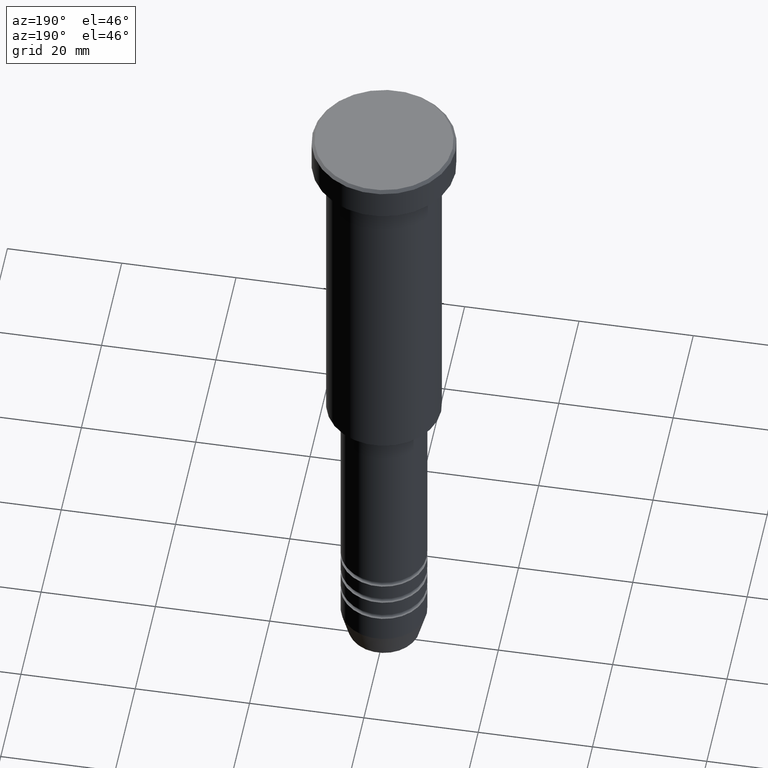
[diagram: clean part render]
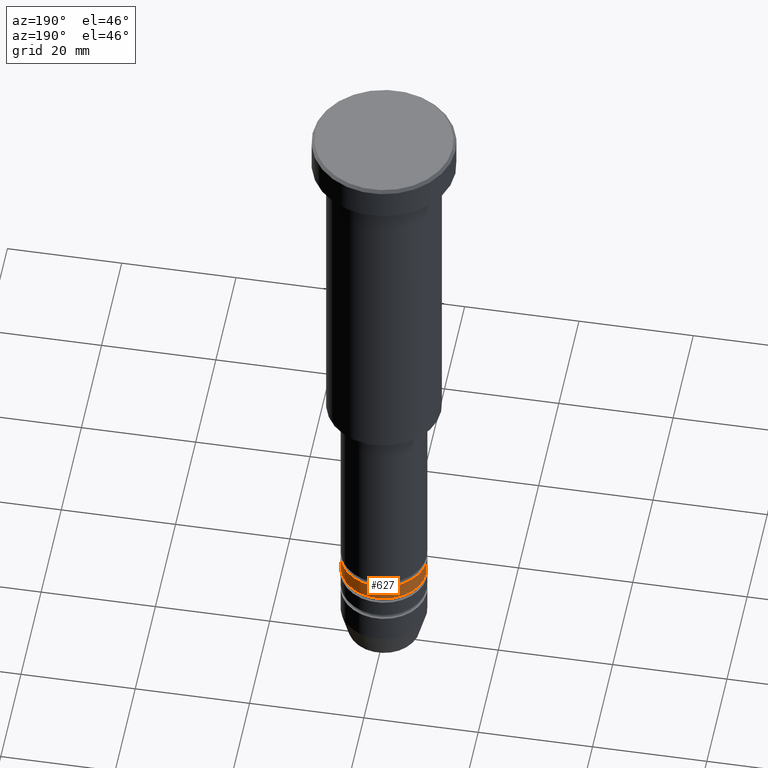
[diagram: same view with one face highlighted and labeled with its STEP entity id]
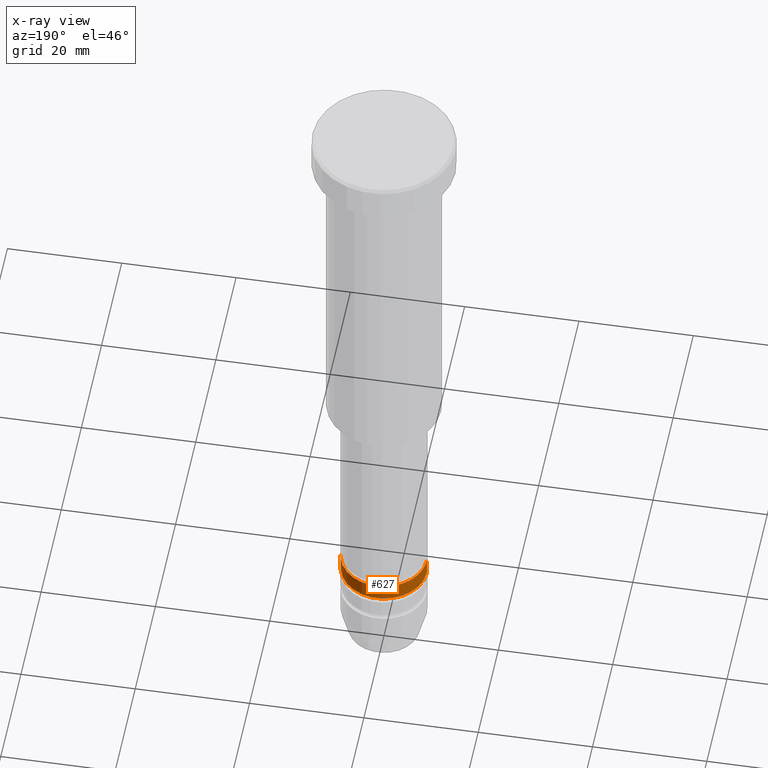
[diagram: x-ray of the same camera — body ghosted, the highlighted face saturated]
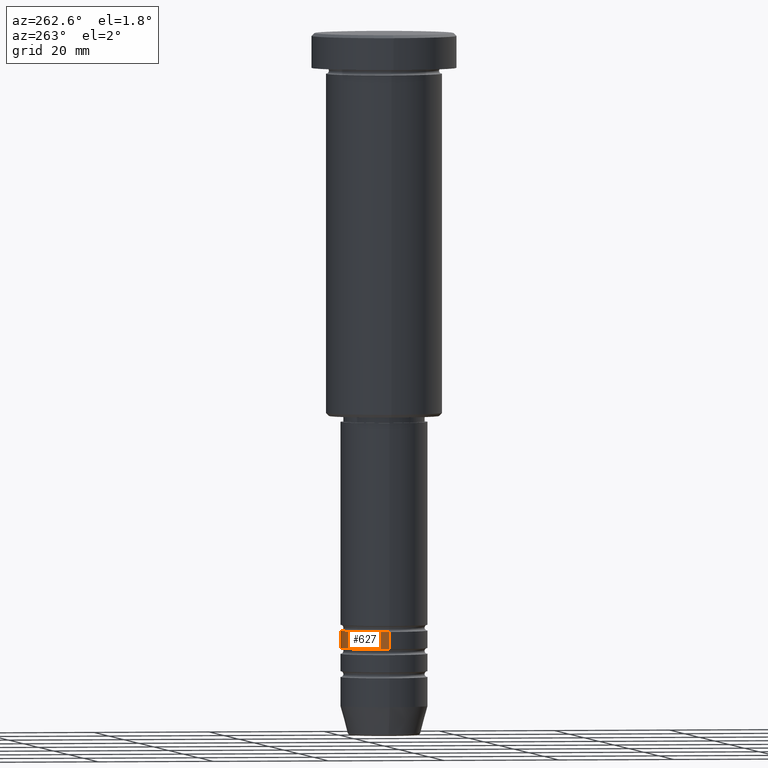
[diagram: same view with one face highlighted and labeled with its STEP entity id]
A machine part, auxiliary view. The second image highlights one B-rep face of the part: STEP entity #627.
The next image is the same camera in x-ray: the body ghosted, the highlighted face saturated — about 0% of this face is hidden behind the body in this view.
A second angle (auxiliary view) of the same face is appended — the face is thin or edge-on in the first view.
In plain terms, the highlighted cylindrical surface (partial cylindrical patch) has radius 7.5 mm, axis along (-0, -0, 1).
Its self-contained STEP definition (entity closure, byte-faithful):
#1 = EDGE_CURVE ( 'NONE', #90, #739, #900, .T. ) ;
#69 = CARTESIAN_POINT ( 'NONE',  ( 7.500000000000000000, 0.000000000000000000, -102.9999999999999005 ) ) ;
#80 = FACE_OUTER_BOUND ( 'NONE', #1144, .T. ) ;
#90 = VERTEX_POINT ( 'NONE', #990 ) ;
#143 = CIRCLE ( 'NONE', #750, 7.500000000000000000 ) ;
#171 = DIRECTION ( 'NONE',  ( 1.000000000000000000, 0.000000000000000000, 0.000000000000000000 ) ) ;
#185 = DIRECTION ( 'NONE',  ( 1.000000000000000000, 0.000000000000000000, 0.000000000000000000 ) ) ;
#193 = CARTESIAN_POINT ( 'NONE',  ( 7.500000000000002665, 0.000000000000000000, -105.9999999999999147 ) ) ;
#260 = EDGE_CURVE ( 'NONE', #716, #90, #1109, .T. ) ;
#263 = CARTESIAN_POINT ( 'NONE',  ( 0.000000000000000000, 0.000000000000000000, 0.000000000000000000 ) ) ;
#285 = CYLINDRICAL_SURFACE ( 'NONE', #786, 7.500000000000001776 ) ;
#346 = CARTESIAN_POINT ( 'NONE',  ( -7.500000000000001776, 9.184850993605149917E-16, 0.000000000000000000 ) ) ;
#364 = DIRECTION ( 'NONE',  ( 1.000000000000000000, 0.000000000000000000, 0.000000000000000000 ) ) ;
#365 = CARTESIAN_POINT ( 'NONE',  ( 0.000000000000000000, 0.000000000000000000, -105.9999999999999147 ) ) ;
#448 = DIRECTION ( 'NONE',  ( -0.000000000000000000, -0.000000000000000000, 1.000000000000000000 ) ) ;
#449 = VECTOR ( 'NONE', #448, 1000.000000000000000 ) ;
#558 = DIRECTION ( 'NONE',  ( -0.000000000000000000, -0.000000000000000000, 1.000000000000000000 ) ) ;
#561 = LINE ( 'NONE', #844, #1014 ) ;
#610 = EDGE_CURVE ( 'NONE', #716, #1174, #561, .T. ) ;
#613 = ORIENTED_EDGE ( 'NONE', *, *, #260, .T. ) ;
#627 = ADVANCED_FACE ( 'NONE', ( #80 ), #285, .T. ) ;
#630 = ORIENTED_EDGE ( 'NONE', *, *, #610, .F. ) ;
#680 = EDGE_CURVE ( 'NONE', #1174, #739, #143, .T. ) ;
#716 = VERTEX_POINT ( 'NONE', #193 ) ;
#739 = VERTEX_POINT ( 'NONE', #1130 ) ;
#750 = AXIS2_PLACEMENT_3D ( 'NONE', #930, #925, #171 ) ;
#786 = AXIS2_PLACEMENT_3D ( 'NONE', #263, #1117, #364 ) ;
#844 = CARTESIAN_POINT ( 'NONE',  ( 7.500000000000001776, 0.000000000000000000, 0.000000000000000000 ) ) ;
#900 = LINE ( 'NONE', #346, #449 ) ;
#918 = AXIS2_PLACEMENT_3D ( 'NONE', #365, #558, #185 ) ;
#925 = DIRECTION ( 'NONE',  ( -0.000000000000000000, -0.000000000000000000, 1.000000000000000000 ) ) ;
#928 = ORIENTED_EDGE ( 'NONE', *, *, #680, .F. ) ;
#930 = CARTESIAN_POINT ( 'NONE',  ( 0.000000000000000000, 0.000000000000000000, -102.9999999999999005 ) ) ;
#990 = CARTESIAN_POINT ( 'NONE',  ( -7.500000000000003553, 9.184850993605151889E-16, -105.9999999999999147 ) ) ;
#999 = ORIENTED_EDGE ( 'NONE', *, *, #1, .T. ) ;
#1005 = DIRECTION ( 'NONE',  ( -0.000000000000000000, -0.000000000000000000, 1.000000000000000000 ) ) ;
#1014 = VECTOR ( 'NONE', #1005, 1000.000000000000000 ) ;
#1109 = CIRCLE ( 'NONE', #918, 7.500000000000002665 ) ;
#1117 = DIRECTION ( 'NONE',  ( -0.000000000000000000, -0.000000000000000000, 1.000000000000000000 ) ) ;
#1130 = CARTESIAN_POINT ( 'NONE',  ( -7.500000000000000000, 9.184850993605147944E-16, -102.9999999999999005 ) ) ;
#1144 = EDGE_LOOP ( 'NONE', ( #613, #999, #928, #630 ) ) ;
#1174 = VERTEX_POINT ( 'NONE', #69 ) ;